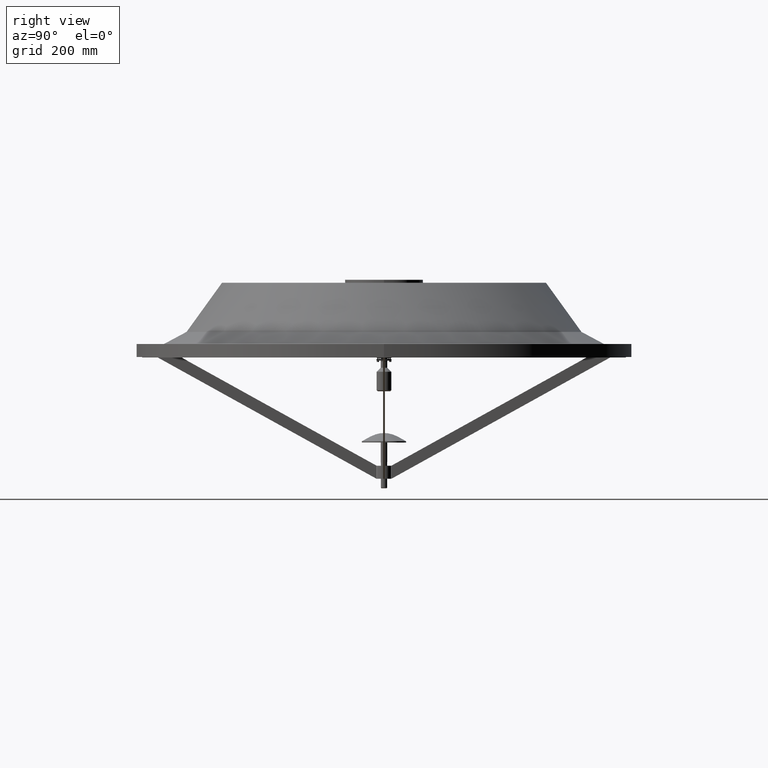
[diagram: clean part render]
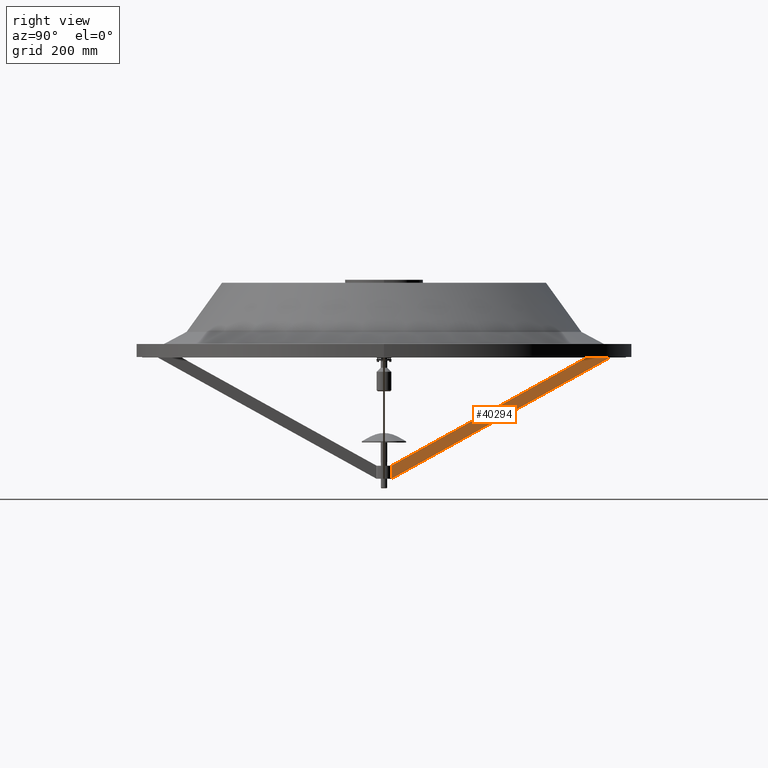
[diagram: same view with one face highlighted and labeled with its STEP entity id]
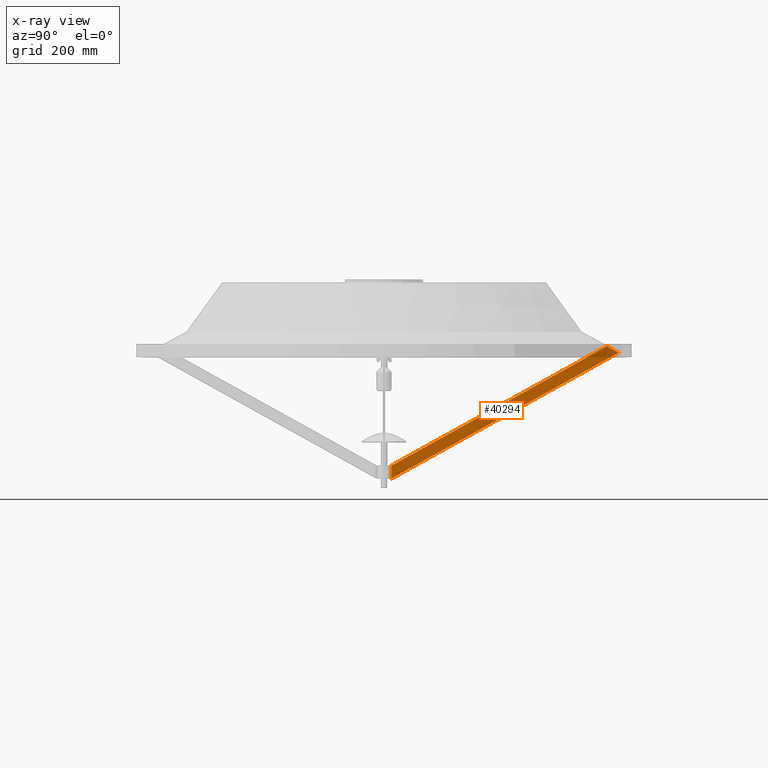
[diagram: x-ray of the same camera — body ghosted, the highlighted face saturated]
A machine part, right view. The second image highlights one B-rep face of the part: STEP entity #40294.
The next image is the same camera in x-ray: the body ghosted, the highlighted face saturated — about 7% of this face is hidden behind the body in this view.
In plain terms, the highlighted planar face has unit normal (-1, 0, 0).
Its self-contained STEP definition (entity closure, byte-faithful):
#147 = VERTEX_POINT ( 'NONE', #17965 ) ;
#321 = CARTESIAN_POINT ( 'NONE',  ( 0.06500000000000195900, 0.5624999999999997800, -14.49999999999999800 ) ) ;
#1375 = VECTOR ( 'NONE', #22390, 39.37007874015748100 ) ;
#2441 = LINE ( 'NONE', #321, #44970 ) ;
#4116 = EDGE_CURVE ( 'NONE', #147, #10250, #23906, .T. ) ;
#5890 = EDGE_LOOP ( 'NONE', ( #24233, #39841, #18518, #25387 ) ) ;
#6653 = B_SPLINE_CURVE_WITH_KNOTS ( 'NONE', 3,
 ( #43970, #44576, #26635, #22725 ),
 .UNSPECIFIED., .F., .F.,
 ( 4, 4 ),
 ( 0.003105971279903192500, 0.02886142237599041700 ),
 .UNSPECIFIED. ) ;
#6833 = CARTESIAN_POINT ( 'NONE',  ( 0.06500000000000195900, 0.5624999999999995600, -13.50000000000000000 ) ) ;
#8200 = PLANE ( 'NONE',  #31641 ) ;
#8348 = CARTESIAN_POINT ( 'NONE',  ( 0.06500000000005776200, 16.54387664743525800, -4.067133275581953800 ) ) ;
#9643 = CARTESIAN_POINT ( 'NONE',  ( 0.06500000000000195900, 0.5624999999999995600, -13.50000000000000000 ) ) ;
#9863 = VECTOR ( 'NONE', #13826, 39.37007874015748100 ) ;
#9886 = FACE_OUTER_BOUND ( 'NONE', #5890, .T. ) ;
#10250 = VERTEX_POINT ( 'NONE', #9643 ) ;
#11236 = VERTEX_POINT ( 'NONE', #38163 ) ;
#13826 = DIRECTION ( 'NONE',  ( -3.053718386061638100E-015, -0.8746197071393933000, -0.4848096202463415500 ) ) ;
#15238 = EDGE_CURVE ( 'NONE', #10250, #44947, #2441, .T. ) ;
#17965 = CARTESIAN_POINT ( 'NONE',  ( 0.06500000000005895500, 17.05597758937836900, -4.357516082274027100 ) ) ;
#18518 = ORIENTED_EDGE ( 'NONE', *, *, #15238, .T. ) ;
#22390 = DIRECTION ( 'NONE',  ( 3.053718386061638100E-015, 0.8746197071393933000, 0.4848096202463415500 ) ) ;
#22725 = CARTESIAN_POINT ( 'NONE',  ( 0.06500000000006432600, 17.92872883880118500, -4.873742165052276800 ) ) ;
#23906 = LINE ( 'NONE', #6833, #9863 ) ;
#24233 = ORIENTED_EDGE ( 'NONE', *, *, #32652, .F. ) ;
#24915 = DIRECTION ( 'NONE',  ( 4.769098145217418800E-031, 1.365923996832132800E-016, -1.000000000000000000 ) ) ;
#25387 = ORIENTED_EDGE ( 'NONE', *, *, #28968, .T. ) ;
#26635 = CARTESIAN_POINT ( 'NONE',  ( 0.06500000000006676800, 17.63976313198745800, -4.698367532007547500 ) ) ;
#28968 = EDGE_CURVE ( 'NONE', #44947, #11236, #39424, .T. ) ;
#31641 = AXIS2_PLACEMENT_3D ( 'NONE', #8348, #43853, #40114 ) ;
#32652 = EDGE_CURVE ( 'NONE', #147, #11236, #6653, .T. ) ;
#38163 = CARTESIAN_POINT ( 'NONE',  ( 0.06500000000006432600, 17.92872883880118500, -4.873742165052276800 ) ) ;
#39424 = LINE ( 'NONE', #40519, #1375 ) ;
#39841 = ORIENTED_EDGE ( 'NONE', *, *, #4116, .T. ) ;
#40114 = DIRECTION ( 'NONE',  ( -0.0000000000000000000, 0.0000000000000000000, -1.000000000000000000 ) ) ;
#40294 = ADVANCED_FACE ( 'NONE', ( #9886 ), #8200, .F. ) ;
#40519 = CARTESIAN_POINT ( 'NONE',  ( 0.06500000000000195900, 0.5624999999999997800, -14.49999999999999800 ) ) ;
#41698 = CARTESIAN_POINT ( 'NONE',  ( 0.06500000000000195900, 0.5624999999999997800, -14.49999999999999800 ) ) ;
#43853 = DIRECTION ( 'NONE',  ( -1.000000000000000000, 3.491481338843133000E-015, 0.0000000000000000000 ) ) ;
#43970 = CARTESIAN_POINT ( 'NONE',  ( 0.06500000000005895500, 17.05597758937836900, -4.357516082274027100 ) ) ;
#44576 = CARTESIAN_POINT ( 'NONE',  ( 0.06500000000005998200, 17.34888098847930500, -4.526233097209007500 ) ) ;
#44947 = VERTEX_POINT ( 'NONE', #41698 ) ;
#44970 = VECTOR ( 'NONE', #24915, 39.37007874015748100 ) ;